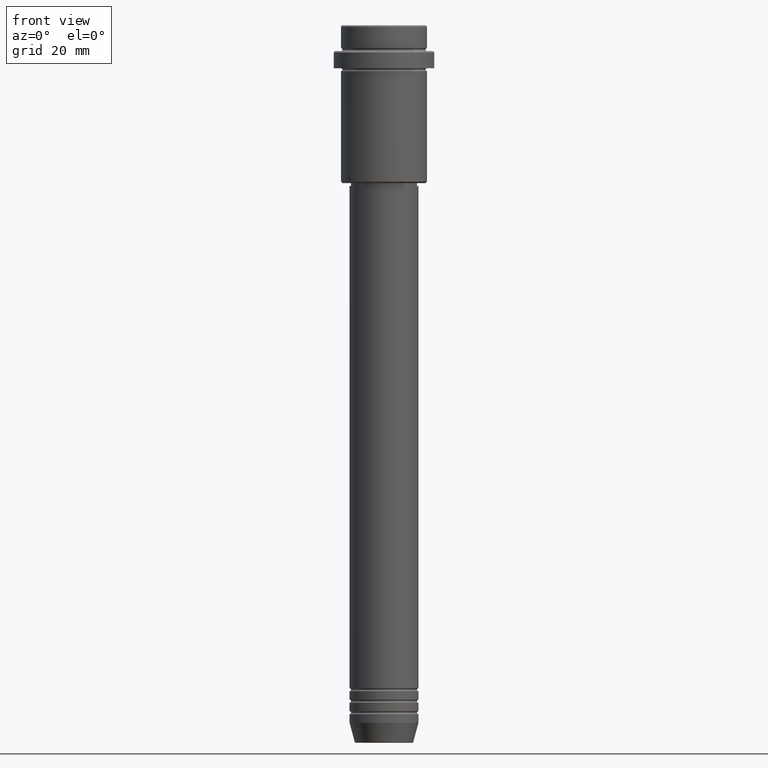
[diagram: clean part render]
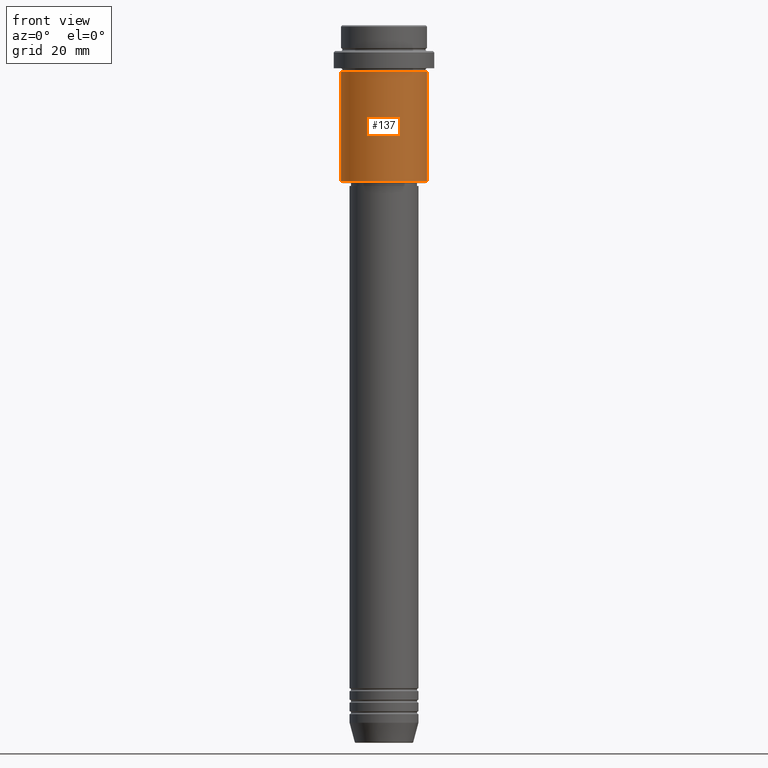
[diagram: same view with one face highlighted and labeled with its STEP entity id]
A machine part, front view. The second image highlights one B-rep face of the part: STEP entity #137.
In plain terms, the highlighted cylindrical surface (partial cylindrical patch) has radius 15 mm, axis along (-0, -0, 1).
Its self-contained STEP definition (entity closure, byte-faithful):
#14 = CARTESIAN_POINT ( 'NONE',  ( 15.00000000000000000, 0.000000000000000000, -54.49999999999998579 ) ) ;
#22 = CARTESIAN_POINT ( 'NONE',  ( 15.00000000000000178, 0.000000000000000000, -16.00000000000000000 ) ) ;
#38 = CARTESIAN_POINT ( 'NONE',  ( 0.000000000000000000, 0.000000000000000000, -54.49999999999998579 ) ) ;
#114 = CARTESIAN_POINT ( 'NONE',  ( -15.00000000000000000, 1.836970198721029589E-15, -54.49999999999998579 ) ) ;
#137 = ADVANCED_FACE ( 'NONE', ( #1350 ), #1247, .T. ) ;
#149 = VECTOR ( 'NONE', #894, 1000.000000000000000 ) ;
#198 = AXIS2_PLACEMENT_3D ( 'NONE', #934, #1376, #1153 ) ;
#200 = VECTOR ( 'NONE', #1289, 1000.000000000000000 ) ;
#295 = EDGE_CURVE ( 'NONE', #1226, #1405, #668, .T. ) ;
#343 = ORIENTED_EDGE ( 'NONE', *, *, #295, .T. ) ;
#398 = VERTEX_POINT ( 'NONE', #22 ) ;
#419 = VERTEX_POINT ( 'NONE', #646 ) ;
#460 = EDGE_CURVE ( 'NONE', #1226, #419, #890, .T. ) ;
#558 = AXIS2_PLACEMENT_3D ( 'NONE', #38, #674, #580 ) ;
#580 = DIRECTION ( 'NONE',  ( -1.000000000000000000, 0.000000000000000000, 0.000000000000000000 ) ) ;
#646 = CARTESIAN_POINT ( 'NONE',  ( -15.00000000000000355, 1.836970198721029983E-15, -16.00000000000000000 ) ) ;
#668 = CIRCLE ( 'NONE', #558, 15.00000000000000000 ) ;
#674 = DIRECTION ( 'NONE',  ( -0.000000000000000000, -0.000000000000000000, 1.000000000000000000 ) ) ;
#686 = DIRECTION ( 'NONE',  ( -0.000000000000000000, -0.000000000000000000, 1.000000000000000000 ) ) ;
#702 = EDGE_LOOP ( 'NONE', ( #840, #343, #1399, #933 ) ) ;
#717 = DIRECTION ( 'NONE',  ( 1.000000000000000000, 0.000000000000000000, 0.000000000000000000 ) ) ;
#758 = AXIS2_PLACEMENT_3D ( 'NONE', #930, #686, #717 ) ;
#790 = EDGE_CURVE ( 'NONE', #419, #398, #1267, .T. ) ;
#840 = ORIENTED_EDGE ( 'NONE', *, *, #460, .F. ) ;
#866 = EDGE_CURVE ( 'NONE', #1405, #398, #958, .T. ) ;
#890 = LINE ( 'NONE', #1359, #149 ) ;
#894 = DIRECTION ( 'NONE',  ( -0.000000000000000000, -0.000000000000000000, 1.000000000000000000 ) ) ;
#930 = CARTESIAN_POINT ( 'NONE',  ( 0.000000000000000000, 0.000000000000000000, 0.000000000000000000 ) ) ;
#933 = ORIENTED_EDGE ( 'NONE', *, *, #790, .F. ) ;
#934 = CARTESIAN_POINT ( 'NONE',  ( 0.000000000000000000, 0.000000000000000000, -16.00000000000000000 ) ) ;
#958 = LINE ( 'NONE', #1087, #200 ) ;
#1087 = CARTESIAN_POINT ( 'NONE',  ( 15.00000000000000000, 0.000000000000000000, 0.000000000000000000 ) ) ;
#1153 = DIRECTION ( 'NONE',  ( 1.000000000000000000, 0.000000000000000000, 0.000000000000000000 ) ) ;
#1226 = VERTEX_POINT ( 'NONE', #114 ) ;
#1247 = CYLINDRICAL_SURFACE ( 'NONE', #758, 15.00000000000000000 ) ;
#1267 = CIRCLE ( 'NONE', #198, 15.00000000000000178 ) ;
#1289 = DIRECTION ( 'NONE',  ( -0.000000000000000000, -0.000000000000000000, 1.000000000000000000 ) ) ;
#1350 = FACE_OUTER_BOUND ( 'NONE', #702, .T. ) ;
#1359 = CARTESIAN_POINT ( 'NONE',  ( -15.00000000000000000, 1.836970198721029589E-15, 0.000000000000000000 ) ) ;
#1376 = DIRECTION ( 'NONE',  ( -0.000000000000000000, -0.000000000000000000, 1.000000000000000000 ) ) ;
#1399 = ORIENTED_EDGE ( 'NONE', *, *, #866, .T. ) ;
#1405 = VERTEX_POINT ( 'NONE', #14 ) ;